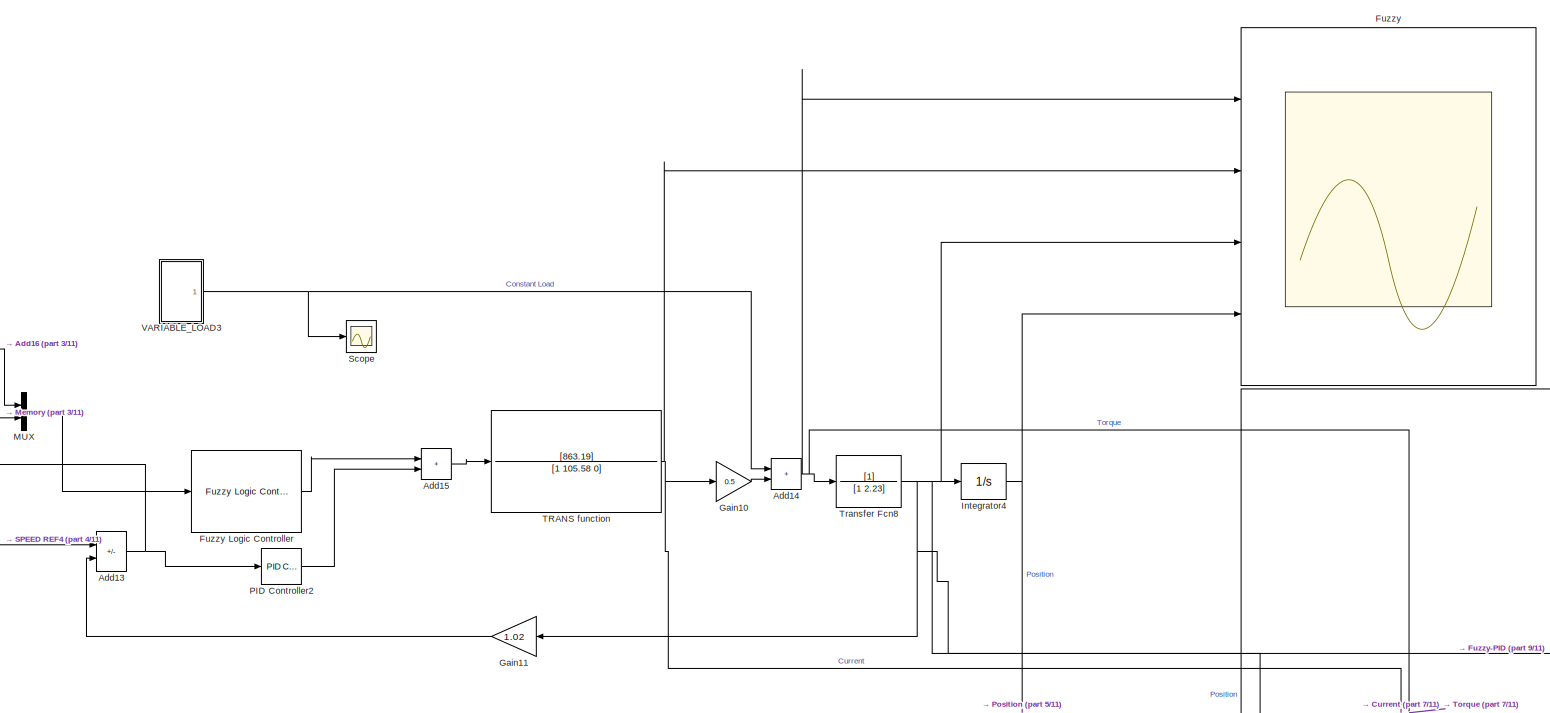
[diagram: root canvas - part 1/11, top center region]
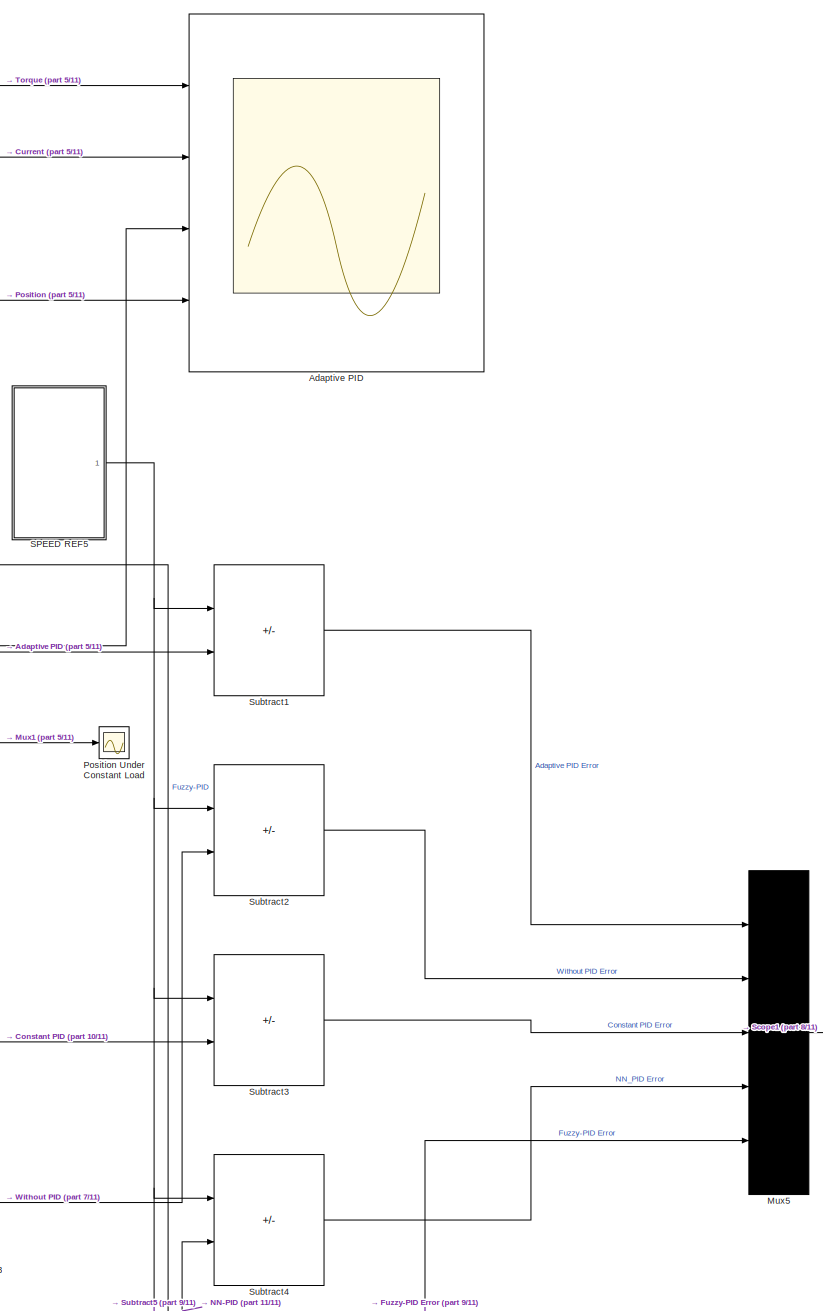
[diagram: root canvas - part 2/11, top right region]
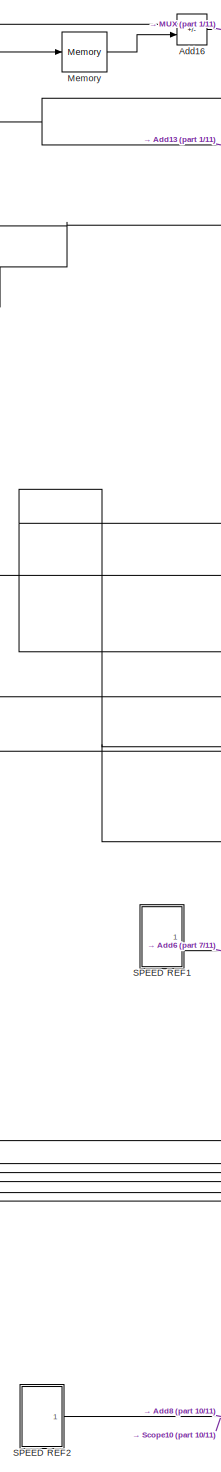
[diagram: root canvas - part 3/11, middle left region]
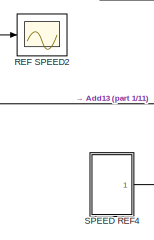
[diagram: root canvas - part 4/11, top left region]
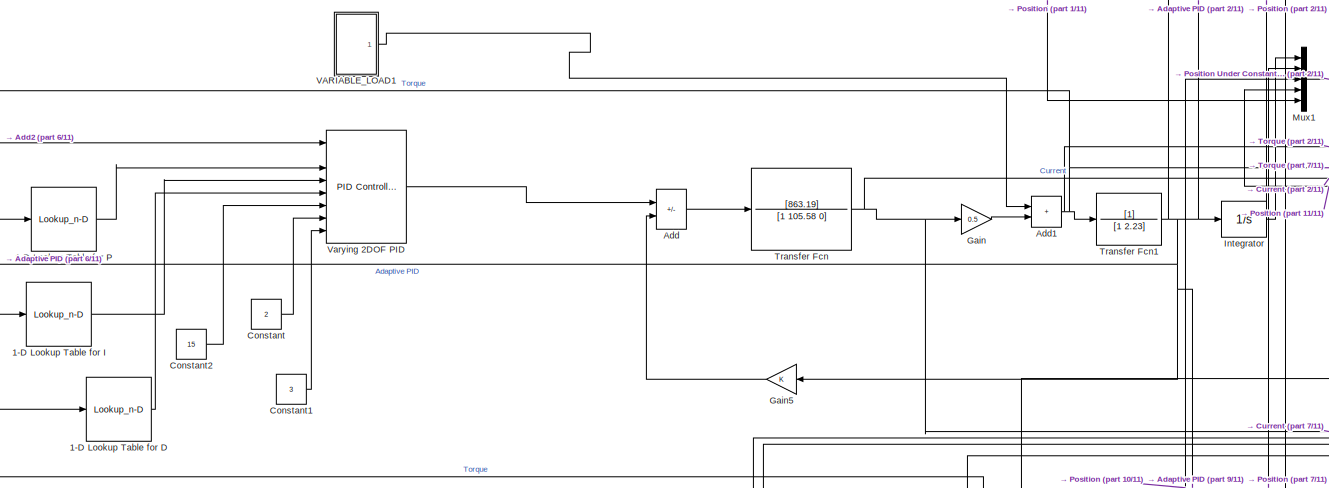
[diagram: root canvas - part 5/11, central region]
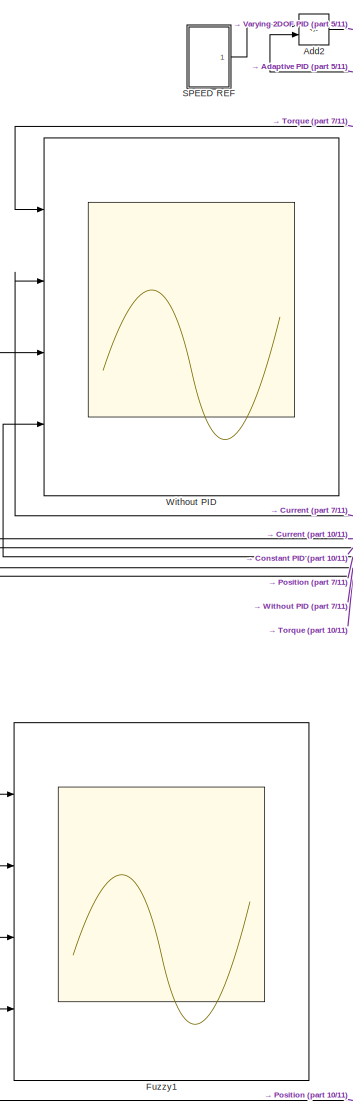
[diagram: root canvas - part 6/11, middle left region]
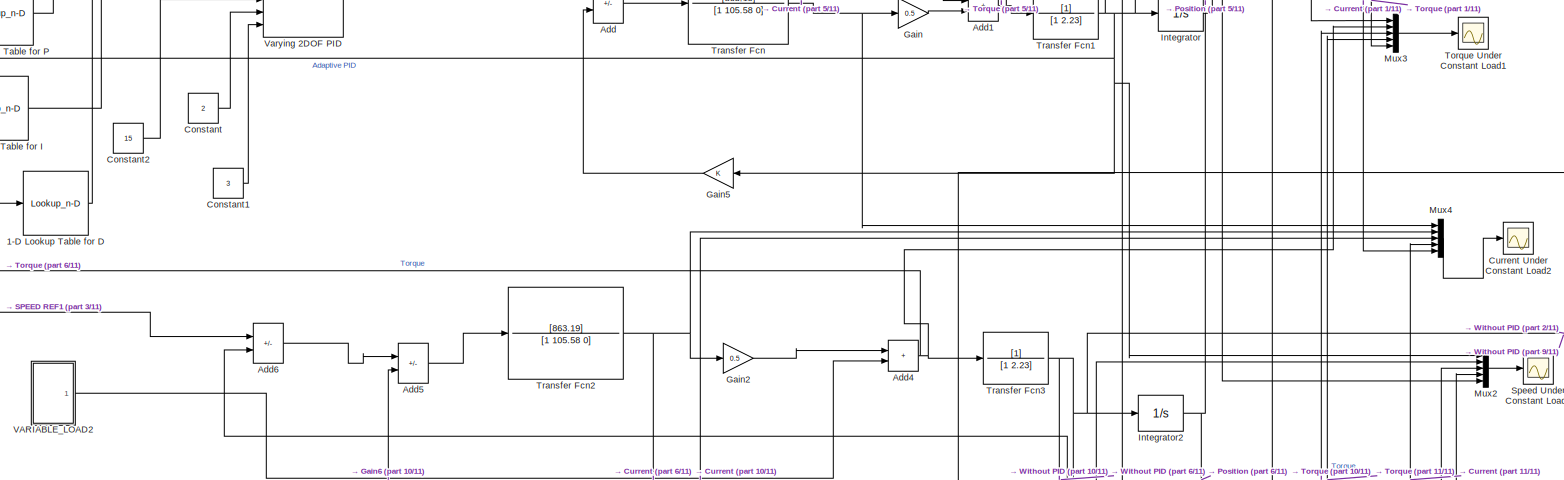
[diagram: root canvas - part 7/11, central region]
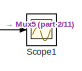
[diagram: root canvas - part 8/11, middle right region]
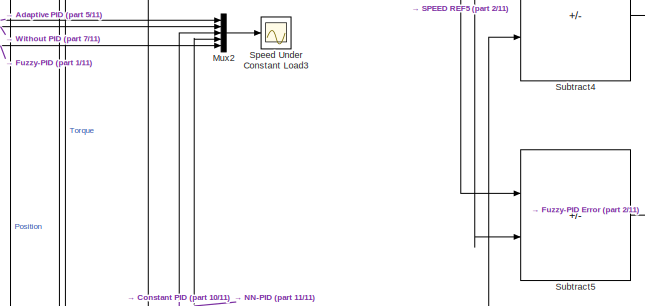
[diagram: root canvas - part 9/11, middle right region]
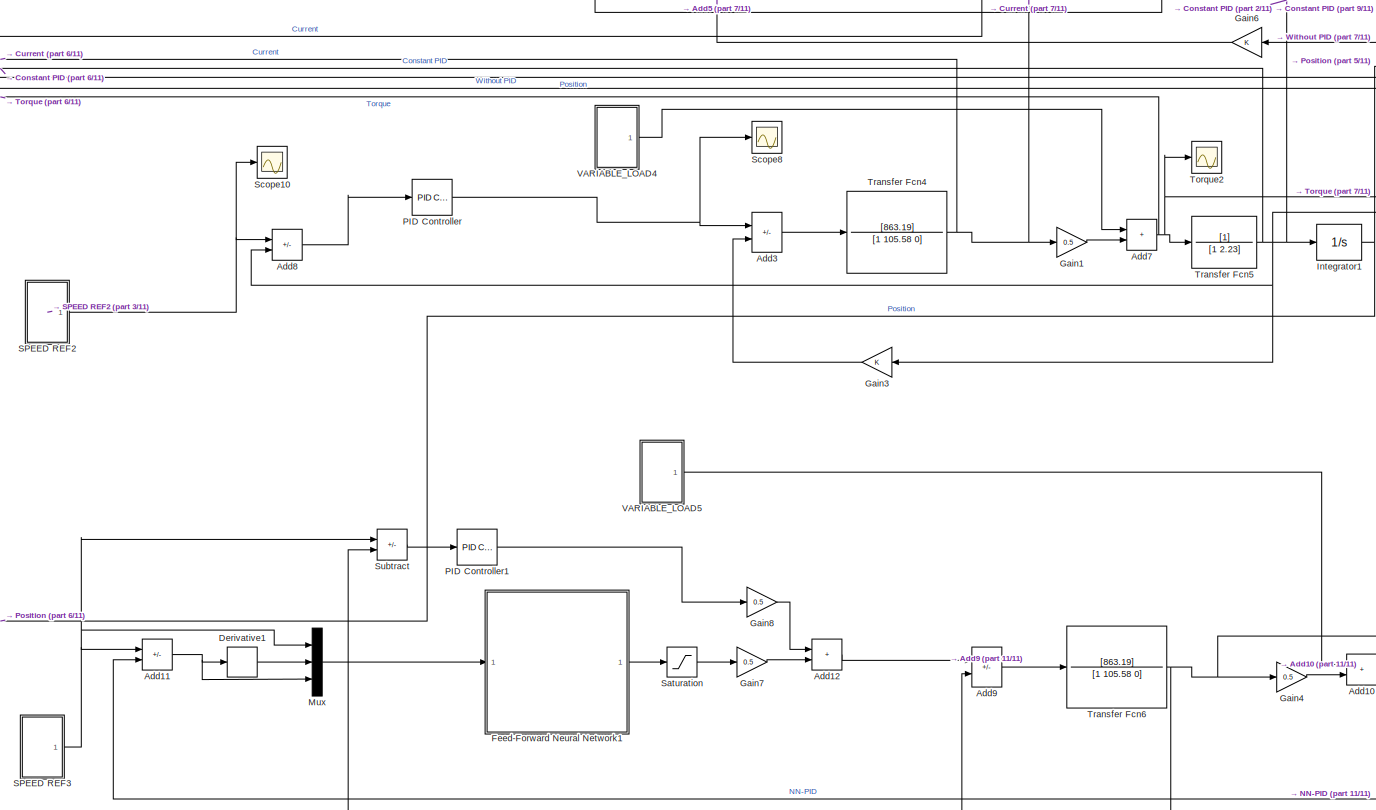
[diagram: root canvas - part 10/11, bottom left region]
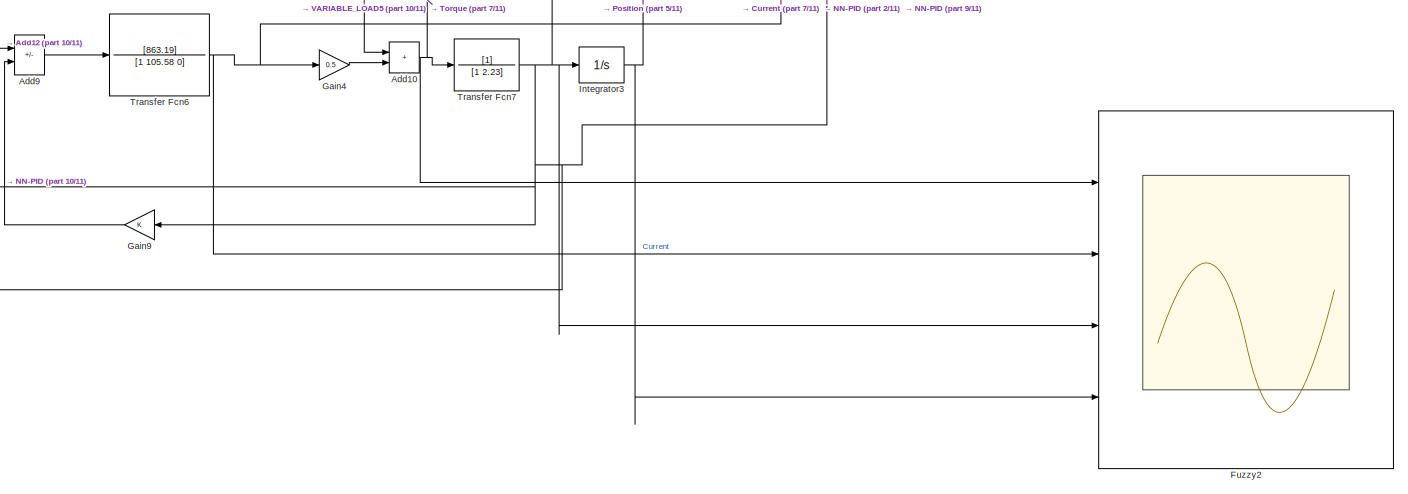
[diagram: root canvas - part 11/11, bottom center region]
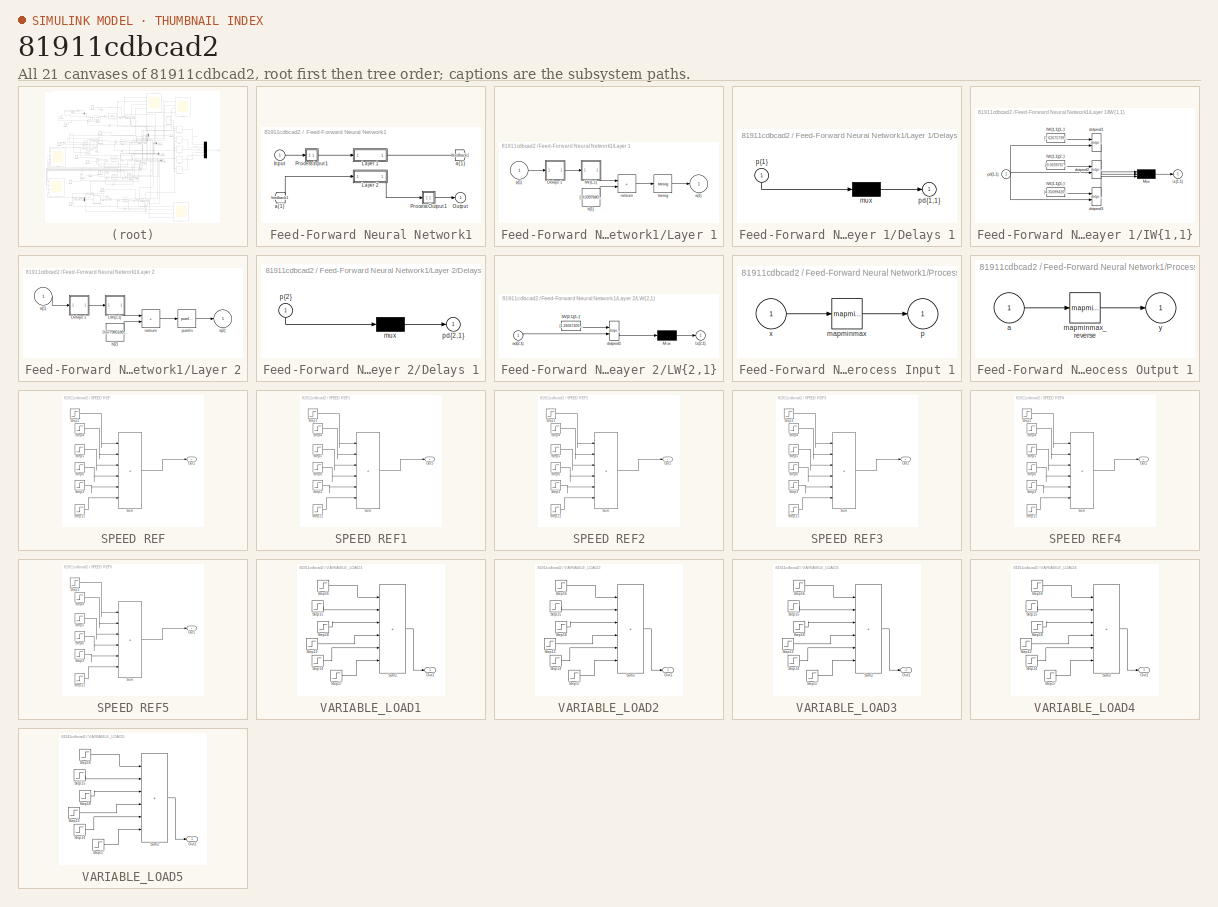
[diagram: thumbnail index - all 21 canvases of the model, root first then tree order]
MODEL slx_81911cdbcad2
KIND model
CONFIG AbsTol = auto
CONFIG EnableMultiTasking = off
CONFIG FixedStep = 0.001
CONFIG MaxStep = auto
CONFIG MinStep = auto
CONFIG RelTol = 1e-3
CONFIG SampleTimeConstraint = Unconstrained
CONFIG SolverName = FixedStepAuto
CONFIG StartTime = 0.0
CONFIG StopTime = 25
BLOCK [Lookup_n-D] 1-D Lookup Table for D
  BreakpointsForDimension1 = [-5, -4.5, -4, -3.5, -3, -2.5, -2, -1.5, -1, -0.5, 0, 0.5, 1, 1.5, 2, 2.5, 3, 3.5, 4, 4.5, 5, 5.5, 6, 6.5, 7, 7.5, 8, 8.5, 9, 9.5, 10]
  InputPortMap = u0
  InternalRulePriority = Speed
  InterpMethod = Linear Lagrange
  NumberOfTableDimensions = 1
  Ports = [1, 1]
  RndMeth = Simplest
  Table = [0.1, 0.1, 0.1, 0.1, 0.1, 0.1, 0.1, 0.1, 0.1, 0.1, 0.1, 0.1, 0.1, 0.1, 0.1, 0.1, 0.1, 0.1, 0.1, 0.1, 0.1, 0.1, 0.1, 0.1, 0.1, 0.1, 0.1, 0.1, 0.1, 0.1, 0.1]
BLOCK [Lookup_n-D] 1-D Lookup Table for I
  BreakpointsForDimension1 = [-5, -4.5, -4, -3.5, -3, -2.5, -2, -1.5, -1, -0.5, 0, 0.5, 1, 1.5, 2, 2.5, 3, 3.5, 4, 4.5, 5, 5.5, 6, 6.5, 7, 7.5, 8, 8.5, 9, 9.5, 10]
  InputPortMap = u0
  InternalRulePriority = Speed
  NumberOfTableDimensions = 1
  Ports = [1, 1]
  RndMeth = Simplest
  Table = [2.0, 2.0, 2.0, 2.0, 2.0, 0.1, 0.1, 0.1, 2.0, 0.5, 0.5, 0.5, 0.5, 0.5, 0.5, 2.5, 2.5, 2.5, 2.0, 2.0, 2.0, 2.0, 0.5, 0.5, 0.5, 2.0, 2.0, 2.0, 2.0, 2.0, 2.0]
BLOCK [Lookup_n-D] 1-D Lookup Table for P
  BreakpointsForDimension1 = [-5, -4.5, -4, -3.5, -3, -2.5, -2, -1.5, -1, -0.5, 0, 0.5, 1, 1.5, 2, 2.5, 3, 3.5, 4, 4.5, 5, 5.5, 6, 6.5, 7, 7.5, 8, 8.5, 9, 9.5, 10]
  InputPortMap = u0
  InternalRulePriority = Speed
  InterpMethod = Linear Lagrange
  NumberOfTableDimensions = 1
  Ports = [1, 1]
  RndMeth = Simplest
  Table = [2.0, 2.0, 0.5, 0.05, 0.05, 0.5, 0.1, 1, 1.5, 1.5, 1.5, 1.5, 2.0, 2.0, 2.5, .05, .5, .5, 2.0, 2.0, 2.0, 2.0, 0.5, 0.5, 0.5, 2.0, 2.0, 2.0, 2.0, 2.0, 2.0]
BLOCK [Scope] Adaptive PID
  Floating = off
  NumInputPorts = 4
  Ports = [4]
  ScopeSpecificationString = Simulink.scopes.TimeScopeBlockCfg('CurrentConfiguration', extmgr.ConfigurationSet(extmgr.Configuration('Core','General UI',true,'FigureColor',[1 1 1]),extmgr.Configuration('Core','Source UI',true),extmgr.Configuration('Sources','WiredSimulink',true,'DataLoggingVariableName','ScopeData4'),extmgr.Configuration('Visuals','Time Domain',true,'SerializedDisplays',{struct('MinYLimReal','-3.09454','MaxYLi...<+4030ch>
BLOCK [Sum] Add
  IconShape = rectangular
  Inputs = +-
  Ports = [2, 1]
BLOCK [Sum] Add1
  IconShape = rectangular
  Ports = [2, 1]
BLOCK [Sum] Add10
  IconShape = rectangular
  Ports = [2, 1]
BLOCK [Sum] Add11
  IconShape = rectangular
  Inputs = +-
  Ports = [2, 1]
BLOCK [Sum] Add12
  IconShape = rectangular
  Ports = [2, 1]
BLOCK [Sum] Add13
  IconShape = rectangular
  Inputs = +-
  Ports = [2, 1]
BLOCK [Sum] Add14
  IconShape = rectangular
  Ports = [2, 1]
BLOCK [Sum] Add15
  IconShape = rectangular
  Ports = [2, 1]
BLOCK [Sum] Add16
  IconShape = rectangular
  Inputs = +-
  Ports = [2, 1]
BLOCK [Sum] Add2
  IconShape = rectangular
  Inputs = +-
  Ports = [2, 1]
BLOCK [Sum] Add3
  IconShape = rectangular
  Inputs = +-
  Ports = [2, 1]
BLOCK [Sum] Add4
  IconShape = rectangular
  Ports = [2, 1]
BLOCK [Sum] Add5
  IconShape = rectangular
  Inputs = +-
  Ports = [2, 1]
BLOCK [Sum] Add6
  IconShape = rectangular
  Inputs = +-
  Ports = [2, 1]
BLOCK [Sum] Add7
  IconShape = rectangular
  Ports = [2, 1]
BLOCK [Sum] Add8
  IconShape = rectangular
  Inputs = +-
  Ports = [2, 1]
BLOCK [Sum] Add9
  IconShape = rectangular
  Inputs = +-
  Ports = [2, 1]
BLOCK [Constant] Constant
  Value = 2
BLOCK [Constant] Constant1
  Value = 3
BLOCK [Constant] Constant2
  Value = 15
BLOCK [Scope] Current Under Constant Load2
  Floating = off
  NameLocation = left
  NumInputPorts = 1
  Ports = [1]
  ScopeSpecificationString = Simulink.scopes.TimeScopeBlockCfg('CurrentConfiguration', extmgr.ConfigurationSet(extmgr.Configuration('Core','General UI',true,'FigureColor',[1 1 1]),extmgr.Configuration('Core','Source UI',true),extmgr.Configuration('Sources','WiredSimulink',true,'DataLoggingVariableName','ScopeData8'),extmgr.Configuration('Visuals','Time Domain',true,'SerializedDisplays',{struct('MinYLimReal','-19.34851','MaxYL...<+2056ch>
BLOCK [Derivative] Derivative1
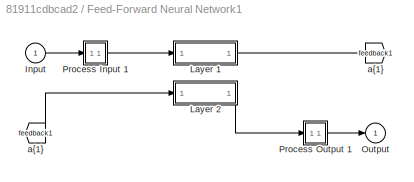
BLOCK [SubSystem] Feed-Forward Neural Network1
  Ports = [1, 1]
  RequestExecContextInheritance = off
BLOCK [From] Feed-Forward Neural Network1/ a{1} 
  GotoTag = feedback1
BLOCK [Inport] Feed-Forward Neural Network1/Input
  PortDimensions = 3
  SampleTime = 0.01
BLOCK [SubSystem] Feed-Forward Neural Network1/Layer 1
  Ports = [1, 1]
  RequestExecContextInheritance = off
BLOCK [SubSystem] Feed-Forward Neural Network1/Layer 1/Delays 1
  Ports = [1, 1]
  RequestExecContextInheritance = off
BLOCK [Mux] Feed-Forward Neural Network1/Layer 1/Delays 1/mux
  Inputs = 1
  Ports = [1, 1]
BLOCK [Outport] Feed-Forward Neural Network1/Layer 1/Delays 1/pd{1,1}
BLOCK [Inport] Feed-Forward Neural Network1/Layer 1/Delays 1/p{1}
  NameLocation = left
  PortDimensions = 3
  SampleTime = 0.01
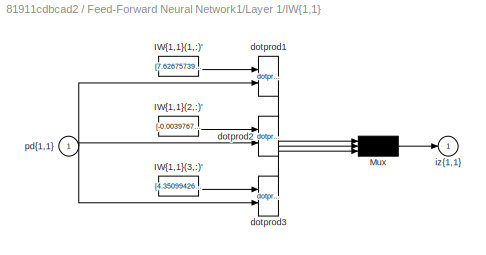
BLOCK [SubSystem] Feed-Forward Neural Network1/Layer 1/IW{1,1}
  Ports = [1, 1]
  RequestExecContextInheritance = off
BLOCK [Constant] Feed-Forward Neural Network1/Layer 1/IW{1,1}/IW{1,1}(1,:)'
  Value = [7.62675739469773628087523320573382079601287841796875;-0.5446236789066098982203811829094775021076202392578125;0.204331324162682348433150991695583797991275787353515625]
BLOCK [Constant] Feed-Forward Neural Network1/Layer 1/IW{1,1}/IW{1,1}(2,:)'
  Value = [-0.003976781406184483162735698869028055923990905284881591796875;4.7496947825762703132568276487290859222412109375;0.003744712794989319033789332280548478593118488788604736328125]
BLOCK [Constant] Feed-Forward Neural Network1/Layer 1/IW{1,1}/IW{1,1}(3,:)'
  Value = [4.35099426290350610457835500710643827915191650390625;-0.376883520126434390373759697467903606593608856201171875;-0.033725710150871814063666676020147860981523990631103515625]
BLOCK [Mux] Feed-Forward Neural Network1/Layer 1/IW{1,1}/Mux
  Inputs = 3
  Ports = [3, 1]
BLOCK [Reference] Feed-Forward Neural Network1/Layer 1/IW{1,1}/dotprod1  REF=neural/Weight Functions/dotprod
  Ports = [2, 1]
  SourceBlock = neural/Weight Functions/dotprod
  SourceProductBaseCode = NN
  SourceType = DOTPROD
BLOCK [Reference] Feed-Forward Neural Network1/Layer 1/IW{1,1}/dotprod2  REF=neural/Weight Functions/dotprod
  Ports = [2, 1]
  SourceBlock = neural/Weight Functions/dotprod
  SourceProductBaseCode = NN
  SourceType = DOTPROD
BLOCK [Reference] Feed-Forward Neural Network1/Layer 1/IW{1,1}/dotprod3  REF=neural/Weight Functions/dotprod
  Ports = [2, 1]
  SourceBlock = neural/Weight Functions/dotprod
  SourceProductBaseCode = NN
  SourceType = DOTPROD
BLOCK [Outport] Feed-Forward Neural Network1/Layer 1/IW{1,1}/iz{1,1}
BLOCK [Inport] Feed-Forward Neural Network1/Layer 1/IW{1,1}/pd{1,1}
  PortDimensions = 3
  SampleTime = 0.01
BLOCK [Outport] Feed-Forward Neural Network1/Layer 1/a{1}
  InitialOutput = [0;0;0]
BLOCK [Constant] Feed-Forward Neural Network1/Layer 1/b{1}
  Value = [-9.039784028091073508903718902729451656341552734375;0.007088234032908090863356331823297296068631112575531005859375;5.52122914229548999998087310814298689365386962890625]
BLOCK [Sum] Feed-Forward Neural Network1/Layer 1/netsum
  IconShape = rectangular
  InputSameDT = on
  Inputs = 2
  OutDataTypeStr = Inherit: Same as first input
  Ports = [2, 1]
  SaturateOnIntegerOverflow = on
BLOCK [Inport] Feed-Forward Neural Network1/Layer 1/p{1}
  PortDimensions = 3
  SampleTime = 0.01
BLOCK [Reference] Feed-Forward Neural Network1/Layer 1/tansig  REF=neural/Transfer Functions/tansig
  Ports = [1, 1]
  SourceBlock = neural/Transfer Functions/tansig
  SourceProductBaseCode = NN
  SourceType = TANSIG
BLOCK [SubSystem] Feed-Forward Neural Network1/Layer 2
  Ports = [1, 1]
  RequestExecContextInheritance = off
BLOCK [SubSystem] Feed-Forward Neural Network1/Layer 2/Delays 1
  Ports = [1, 1]
  RequestExecContextInheritance = off
BLOCK [Mux] Feed-Forward Neural Network1/Layer 2/Delays 1/mux
  Inputs = 1
  Ports = [1, 1]
BLOCK [Outport] Feed-Forward Neural Network1/Layer 2/Delays 1/pd{2,1}
BLOCK [Inport] Feed-Forward Neural Network1/Layer 2/Delays 1/p{2}
  NameLocation = left
  PortDimensions = 3
  SampleTime = 0.01
BLOCK [SubSystem] Feed-Forward Neural Network1/Layer 2/LW{2,1}
  Ports = [1, 1]
  RequestExecContextInheritance = off
BLOCK [Constant] Feed-Forward Neural Network1/Layer 2/LW{2,1}/IW{2,1}(1,:)'
  Value = [1.2606740079756655337206439071451313793659210205078125;0.9550747593310602301386325052590109407901763916015625;0.57590711305542263698242777536506764590740203857421875]
BLOCK [Mux] Feed-Forward Neural Network1/Layer 2/LW{2,1}/Mux
  Inputs = 1
  Ports = [1, 1]
BLOCK [Inport] Feed-Forward Neural Network1/Layer 2/LW{2,1}/ad{2,1}
  PortDimensions = 3
  SampleTime = 0.01
BLOCK [Reference] Feed-Forward Neural Network1/Layer 2/LW{2,1}/dotprod1  REF=neural/Weight Functions/dotprod
  Ports = [2, 1]
  SourceBlock = neural/Weight Functions/dotprod
  SourceProductBaseCode = NN
  SourceType = DOTPROD
BLOCK [Outport] Feed-Forward Neural Network1/Layer 2/LW{2,1}/lz{2,1}
BLOCK [Inport] Feed-Forward Neural Network1/Layer 2/a{1} 
  PortDimensions = 3
  SampleTime = 0.01
BLOCK [Outport] Feed-Forward Neural Network1/Layer 2/a{2}
  InitialOutput = 0
BLOCK [Constant] Feed-Forward Neural Network1/Layer 2/b{2}
  Value = 0.677985189695716083946308572194539010524749755859375
BLOCK [Sum] Feed-Forward Neural Network1/Layer 2/netsum
  IconShape = rectangular
  InputSameDT = on
  Inputs = 2
  OutDataTypeStr = Inherit: Same as first input
  Ports = [2, 1]
  SaturateOnIntegerOverflow = on
BLOCK [Reference] Feed-Forward Neural Network1/Layer 2/purelin  REF=neural/Transfer Functions/purelin
  Ports = [1, 1]
  SourceBlock = neural/Transfer Functions/purelin
  SourceProductBaseCode = NN
  SourceType = PURELIN
BLOCK [Outport] Feed-Forward Neural Network1/Output
  InitialOutput = 0
BLOCK [SubSystem] Feed-Forward Neural Network1/Process Input 1
  Ports = [1, 1]
  RequestExecContextInheritance = off
BLOCK [Reference] Feed-Forward Neural Network1/Process Input 1/mapminmax  REF=neural/Processing Functions/mapminmax
  Ports = [1, 1]
  SourceBlock = neural/Processing Functions/mapminmax
  SourceProductBaseCode = NN
  SourceType = MAPMINMAX Preprocess
BLOCK [Outport] Feed-Forward Neural Network1/Process Input 1/p
  PortDimensions = 3
  SampleTime = 0.01
BLOCK [Inport] Feed-Forward Neural Network1/Process Input 1/x
  PortDimensions = 3
  SampleTime = 0.01
BLOCK [SubSystem] Feed-Forward Neural Network1/Process Output 1
  Ports = [1, 1]
  RequestExecContextInheritance = off
BLOCK [Inport] Feed-Forward Neural Network1/Process Output 1/a
  PortDimensions = 1
  SampleTime = 0.01
BLOCK [Reference] Feed-Forward Neural Network1/Process Output 1/mapminmax_reverse  REF=neural/Processing Functions/mapminmax_reverse
  Ports = [1, 1]
  SourceBlock = neural/Processing Functions/mapminmax_reverse
  SourceProductBaseCode = NN
  SourceType = MAPMINMAX Reverse Process
BLOCK [Outport] Feed-Forward Neural Network1/Process Output 1/y
  PortDimensions = 1
  SampleTime = 0.01
BLOCK [Goto] Feed-Forward Neural Network1/a{1}
  GotoTag = feedback1
BLOCK [Scope] Fuzzy
  Floating = off
  NumInputPorts = 4
  Ports = [4]
  ScopeSpecificationString = Simulink.scopes.TimeScopeBlockCfg('CurrentConfiguration', extmgr.ConfigurationSet(extmgr.Configuration('Core','General UI',true,'FigureColor',[1 1 1]),extmgr.Configuration('Core','Source UI',true),extmgr.Configuration('Sources','WiredSimulink',true,'DataLoggingVariableName','ScopeData3'),extmgr.Configuration('Visuals','Time Domain',true,'SerializedDisplays',{struct('MinYLimReal','-4.54257','MaxYLi...<+4040ch>
BLOCK [Reference] Fuzzy Logic Controller  REF=fuzblock/Fuzzy Logic   (lib defined in mdl_858b3b3e7478)
Controller
  Ports = [1, 1]
  SourceBlock = fuzblock/Fuzzy Logic \nController
  SourceProductBaseCode = FL
  SourceType = Fuzzy Inference System
BLOCK [Scope] Fuzzy1
  Floating = off
  NumInputPorts = 4
  Ports = [4]
  ScopeSpecificationString = Simulink.scopes.TimeScopeBlockCfg('CurrentConfiguration', extmgr.ConfigurationSet(extmgr.Configuration('Core','General UI',true,'FigureColor',[1 1 1]),extmgr.Configuration('Core','Source UI',true),extmgr.Configuration('Sources','WiredSimulink',true,'DataLoggingVariableName','ScopeData6'),extmgr.Configuration('Visuals','Time Domain',true,'SerializedDisplays',{struct('MinYLimReal','-4.79925','MaxYLi...<+4043ch>
BLOCK [Scope] Fuzzy2
  Floating = off
  NumInputPorts = 4
  Ports = [4]
  ScopeSpecificationString = Simulink.scopes.TimeScopeBlockCfg('CurrentConfiguration', extmgr.ConfigurationSet(extmgr.Configuration('Core','General UI',true,'FigureColor',[1 1 1]),extmgr.Configuration('Core','Source UI',true),extmgr.Configuration('Sources','WiredSimulink',true,'DataLoggingVariableName','ScopeData7'),extmgr.Configuration('Visuals','Time Domain',true,'SerializedDisplays',{struct('MinYLimReal','-3.79084','MaxYLi...<+4037ch>
BLOCK [Gain] Gain
  Gain = 0.5
BLOCK [Gain] Gain1
  Gain = 0.5
BLOCK [Gain] Gain10
  Gain = 0.5
BLOCK [Gain] Gain11
  Gain = 1.02
  NameLocation = top
BLOCK [Gain] Gain2
  Gain = 0.5
BLOCK [Gain] Gain3
  NameLocation = top
BLOCK [Gain] Gain4
  Gain = 0.5
BLOCK [Gain] Gain5
  NameLocation = top
BLOCK [Gain] Gain6
  NameLocation = top
BLOCK [Gain] Gain7
  Gain = 0.5
BLOCK [Gain] Gain8
  Gain = 0.5
BLOCK [Gain] Gain9
  NameLocation = top
BLOCK [Integrator] Integrator
  Ports = [1, 1]
BLOCK [Integrator] Integrator1
  Ports = [1, 1]
BLOCK [Integrator] Integrator2
  Ports = [1, 1]
BLOCK [Integrator] Integrator3
  Ports = [1, 1]
BLOCK [Integrator] Integrator4
  Ports = [1, 1]
BLOCK [Mux] MUX
  DisplayOption = bar
  Inputs = 2
  Ports = [2, 1]
BLOCK [Memory] Memory
BLOCK [Mux] Mux
  DisplayOption = bar
  Inputs = 3
  Ports = [3, 1]
BLOCK [Mux] Mux1
  DisplayOption = bar
  Inputs = 5
  Ports = [5, 1]
BLOCK [Mux] Mux2
  DisplayOption = bar
  Inputs = 5
  Ports = [5, 1]
BLOCK [Mux] Mux3
  DisplayOption = bar
  Inputs = 5
  Ports = [5, 1]
BLOCK [Mux] Mux4
  DisplayOption = bar
  Inputs = 5
  Ports = [5, 1]
BLOCK [Mux] Mux5
  DisplayOption = bar
  Inputs = 5
  Ports = [5, 1]
BLOCK [Reference] PID Controller  REF=pid_lib/PID Controller
  Ports = [1, 1]
  SourceBlock = pid_lib/PID Controller
  SourceProductBaseCode = SL
  SourceType = PID 1dof
BLOCK [Reference] PID Controller1  REF=pid_lib/PID Controller
  Ports = [1, 1]
  SourceBlock = pid_lib/PID Controller
  SourceProductBaseCode = SL
  SourceType = PID 1dof
BLOCK [Reference] PID Controller2  REF=pid_lib/PID Controller
  Ports = [1, 1]
  SourceBlock = pid_lib/PID Controller
  SourceProductBaseCode = SL
  SourceType = PID 1dof
BLOCK [Scope] Position Under Constant Load
  Floating = off
  NumInputPorts = 1
  Ports = [1]
  ScopeSpecificationString = Simulink.scopes.TimeScopeBlockCfg('CurrentConfiguration', extmgr.ConfigurationSet(extmgr.Configuration('Core','General UI',true,'FigureColor',[1 1 1]),extmgr.Configuration('Core','Source UI',true),extmgr.Configuration('Sources','WiredSimulink',true,'DataLoggingVariableName','ScopeData2'),extmgr.Configuration('Visuals','Time Domain',true,'SerializedDisplays',{struct('MinYLimReal','-0.90846','MaxYLi...<+2054ch>
BLOCK [Scope] REF SPEED2
  Floating = off
  NumInputPorts = 1
  Ports = [1]
  ScopeSpecificationString = Simulink.scopes.TimeScopeBlockCfg('CurrentConfiguration', extmgr.ConfigurationSet(extmgr.Configuration('Core','General UI',true,'FigureColor',[0 0 0]),extmgr.Configuration('Core','Source UI',true),extmgr.Configuration('Sources','WiredSimulink',true,'DataLoggingVariableName','ScopeData3'),extmgr.Configuration('Visuals','Time Domain',true,'SerializedDisplays',{struct('MinYLimReal','-1.25','MaxYLimRe...<+1600ch>
BLOCK [SubSystem] SPEED REF
  Ports = [0, 1]
  RequestExecContextInheritance = off
BLOCK [Outport] SPEED REF/Out1
BLOCK [Step] SPEED REF/Step1
  After = 0
  Before = 2
  SampleTime = 0
  Time = 0
BLOCK [Step] SPEED REF/Step11
  SampleTime = 0
  Time = 0
BLOCK [Step] SPEED REF/Step3
  SampleTime = 0
  Time = 20
BLOCK [Step] SPEED REF/Step4
  After = 0
  Before = 1
  SampleTime = 0
  Time = 5
BLOCK [Step] SPEED REF/Step5
  After = -1
  Before = 0
  SampleTime = 0
  Time = 10
BLOCK [Step] SPEED REF/Step6
  After = 0
  Before = -1
  SampleTime = 0
  Time = 15
BLOCK [Sum] SPEED REF/Sum
  IconShape = rectangular
  Inputs = |++++++
  Ports = [6, 1]
BLOCK [SubSystem] SPEED REF1
  Ports = [0, 1]
  RequestExecContextInheritance = off
BLOCK [Outport] SPEED REF1/Out1
BLOCK [Step] SPEED REF1/Step1
  After = 0
  Before = 2
  SampleTime = 0
  Time = 0
BLOCK [Step] SPEED REF1/Step11
  SampleTime = 0
  Time = 0
BLOCK [Step] SPEED REF1/Step3
  SampleTime = 0
  Time = 20
BLOCK [Step] SPEED REF1/Step4
  After = 0
  Before = 1
  SampleTime = 0
  Time = 5
BLOCK [Step] SPEED REF1/Step5
  After = -1
  Before = 0
  SampleTime = 0
  Time = 10
BLOCK [Step] SPEED REF1/Step6
  After = 0
  Before = -1
  SampleTime = 0
  Time = 15
BLOCK [Sum] SPEED REF1/Sum
  IconShape = rectangular
  Inputs = |++++++
  Ports = [6, 1]
BLOCK [SubSystem] SPEED REF2
  Ports = [0, 1]
  RequestExecContextInheritance = off
BLOCK [Outport] SPEED REF2/Out1
BLOCK [Step] SPEED REF2/Step1
  After = 0
  Before = 2
  SampleTime = 0
  Time = 0
BLOCK [Step] SPEED REF2/Step11
  SampleTime = 0
  Time = 0
BLOCK [Step] SPEED REF2/Step3
  SampleTime = 0
  Time = 20
BLOCK [Step] SPEED REF2/Step4
  After = 0
  Before = 1
  SampleTime = 0
  Time = 5
BLOCK [Step] SPEED REF2/Step5
  After = -1
  Before = 0
  SampleTime = 0
  Time = 10
BLOCK [Step] SPEED REF2/Step6
  After = 0
  Before = -1
  SampleTime = 0
  Time = 15
BLOCK [Sum] SPEED REF2/Sum
  IconShape = rectangular
  Inputs = |++++++
  Ports = [6, 1]
BLOCK [SubSystem] SPEED REF3
  Ports = [0, 1]
  RequestExecContextInheritance = off
BLOCK [Outport] SPEED REF3/Out1
BLOCK [Step] SPEED REF3/Step1
  After = 0
  Before = 2
  SampleTime = 0
  Time = 0
BLOCK [Step] SPEED REF3/Step11
  SampleTime = 0
  Time = 0
BLOCK [Step] SPEED REF3/Step3
  SampleTime = 0
  Time = 20
BLOCK [Step] SPEED REF3/Step4
  After = 0
  Before = 1
  SampleTime = 0
  Time = 5
BLOCK [Step] SPEED REF3/Step5
  After = -1
  Before = 0
  SampleTime = 0
  Time = 10
BLOCK [Step] SPEED REF3/Step6
  After = 0
  Before = -1
  SampleTime = 0
  Time = 15
BLOCK [Sum] SPEED REF3/Sum
  IconShape = rectangular
  Inputs = |++++++
  Ports = [6, 1]
BLOCK [SubSystem] SPEED REF4
  Ports = [0, 1]
  RequestExecContextInheritance = off
BLOCK [Outport] SPEED REF4/Out1
BLOCK [Step] SPEED REF4/Step1
  After = 0
  Before = 2
  SampleTime = 0
  Time = 0
BLOCK [Step] SPEED REF4/Step11
  SampleTime = 0
  Time = 0
BLOCK [Step] SPEED REF4/Step3
  SampleTime = 0
  Time = 20
BLOCK [Step] SPEED REF4/Step4
  After = 0
  Before = 1
  SampleTime = 0
  Time = 5
BLOCK [Step] SPEED REF4/Step5
  After = -1
  Before = 0
  SampleTime = 0
  Time = 10
BLOCK [Step] SPEED REF4/Step6
  After = 0
  Before = -1
  SampleTime = 0
  Time = 15
BLOCK [Sum] SPEED REF4/Sum
  IconShape = rectangular
  Inputs = |++++++
  Ports = [6, 1]
BLOCK [SubSystem] SPEED REF5
  Ports = [0, 1]
  RequestExecContextInheritance = off
BLOCK [Outport] SPEED REF5/Out1
BLOCK [Step] SPEED REF5/Step1
  After = 0
  Before = 2
  SampleTime = 0
  Time = 0
BLOCK [Step] SPEED REF5/Step11
  SampleTime = 0
  Time = 0
BLOCK [Step] SPEED REF5/Step3
  SampleTime = 0
  Time = 20
BLOCK [Step] SPEED REF5/Step4
  After = 0
  Before = 1
  SampleTime = 0
  Time = 5
BLOCK [Step] SPEED REF5/Step5
  After = -1
  Before = 0
  SampleTime = 0
  Time = 10
BLOCK [Step] SPEED REF5/Step6
  After = 0
  Before = -1
  SampleTime = 0
  Time = 15
BLOCK [Sum] SPEED REF5/Sum
  IconShape = rectangular
  Inputs = |++++++
  Ports = [6, 1]
BLOCK [Saturate] Saturation
  LowerLimit = -1
  UpperLimit = 1
BLOCK [Scope] Scope
  Floating = off
  NumInputPorts = 1
  Ports = [1]
  ScopeSpecificationString = Simulink.scopes.TimeScopeBlockCfg('CurrentConfiguration', extmgr.ConfigurationSet(extmgr.Configuration('Core','General UI',true,'FigureColor',[1 1 1]),extmgr.Configuration('Core','Source UI',true),extmgr.Configuration('Sources','WiredSimulink',true,'DataLoggingVariableName','ScopeData1'),extmgr.Configuration('Visuals','Time Domain',true,'SerializedDisplays',{struct('MinYLimReal','3.75','MaxYLimRea...<+1480ch>
BLOCK [Scope] Scope1
  Floating = off
  NumInputPorts = 1
  Ports = [1]
  ScopeSpecificationString = Simulink.scopes.TimeScopeBlockCfg('CurrentConfiguration', extmgr.ConfigurationSet(extmgr.Configuration('Core','General UI',true,'FigureColor',[1 1 1]),extmgr.Configuration('Core','Source UI',true),extmgr.Configuration('Sources','WiredSimulink',true,'DataLoggingVariableName','ScopeData10'),extmgr.Configuration('Visuals','Time Domain',true,'SerializedDisplays',{struct('MinYLimReal','-1.29476','MaxYL...<+2016ch>
BLOCK [Scope] Scope10
  Floating = off
  NumInputPorts = 1
  Ports = [1]
  ScopeSpecificationString = Simulink.scopes.TimeScopeBlockCfg('CurrentConfiguration', extmgr.ConfigurationSet(extmgr.Configuration('Core','General UI',true),extmgr.Configuration('Core','Source UI',true),extmgr.Configuration('Sources','WiredSimulink',true,'DataLoggingVariableName','ScopeData4'),extmgr.Configuration('Visuals','Time Domain',true,'SerializedDisplays',{struct('MinYLimReal','-1.25','MaxYLimReal','2.00000','YLabelR...<+1502ch>
BLOCK [Scope] Scope8
  Floating = off
  NumInputPorts = 1
  Ports = [1]
  ScopeSpecificationString = Simulink.scopes.TimeScopeBlockCfg('CurrentConfiguration', extmgr.ConfigurationSet(extmgr.Configuration('Core','General UI',true),extmgr.Configuration('Core','Source UI',true),extmgr.Configuration('Sources','WiredSimulink',true,'DataLoggingVariableName','ScopeData5'),extmgr.Configuration('Visuals','Time Domain',true,'SerializedDisplays',{struct('MinYLimReal','-122045790683140.75','MaxYLimReal','428...<+1488ch>
BLOCK [Scope] Speed Under Constant Load3
  Floating = off
  NumInputPorts = 1
  Ports = [1]
  ScopeSpecificationString = Simulink.scopes.TimeScopeBlockCfg('CurrentConfiguration', extmgr.ConfigurationSet(extmgr.Configuration('Core','General UI',true,'FigureColor',[1 1 1]),extmgr.Configuration('Core','Source UI',true),extmgr.Configuration('Sources','WiredSimulink',true,'DataLoggingVariableName','ScopeData9'),extmgr.Configuration('Visuals','Time Domain',true,'SerializedDisplays',{struct('MinYLimReal','-1.48673','MaxYLi...<+1991ch>
BLOCK [Sum] Subtract
  IconShape = rectangular
  Inputs = +-
  Ports = [2, 1]
BLOCK [Sum] Subtract1
  IconShape = rectangular
  Inputs = +-
  Ports = [2, 1]
BLOCK [Sum] Subtract2
  IconShape = rectangular
  Inputs = +-
  Ports = [2, 1]
BLOCK [Sum] Subtract3
  IconShape = rectangular
  Inputs = +-
  Ports = [2, 1]
BLOCK [Sum] Subtract4
  IconShape = rectangular
  Inputs = +-
  Ports = [2, 1]
BLOCK [Sum] Subtract5
  IconShape = rectangular
  Inputs = +-
  Ports = [2, 1]
BLOCK [TransferFcn] TRANS function
  Denominator = [1 105.58 0]
  Numerator = [863.19]
BLOCK [Scope] Torque Under Constant Load1
  Floating = off
  NumInputPorts = 1
  Ports = [1]
  ScopeSpecificationString = Simulink.scopes.TimeScopeBlockCfg('CurrentConfiguration', extmgr.ConfigurationSet(extmgr.Configuration('Core','General UI',true,'FigureColor',[1 1 1]),extmgr.Configuration('Core','Source UI',true),extmgr.Configuration('Sources','WiredSimulink',true,'DataLoggingVariableName','ScopeData2'),extmgr.Configuration('Visuals','Time Domain',true,'SerializedDisplays',{struct('MinYLimReal','-4.79925','MaxYLi...<+2050ch>
BLOCK [Scope] Torque2
  Floating = off
  NumInputPorts = 1
  Ports = [1]
  ScopeSpecificationString = Simulink.scopes.TimeScopeBlockCfg('CurrentConfiguration', extmgr.ConfigurationSet(extmgr.Configuration('Core','General UI',true),extmgr.Configuration('Core','Source UI',true),extmgr.Configuration('Sources','WiredSimulink',true),extmgr.Configuration('Visuals','Time Domain',true,'SerializedDisplays',{struct('MinYLimReal','-21.32063','MaxYLimReal','29.70331','YLabelReal','','MinYLimMag','0.00000','Ma...<+1330ch>
BLOCK [TransferFcn] Transfer Fcn
  Denominator = [1 105.58 0]
  Numerator = [863.19]
BLOCK [TransferFcn] Transfer Fcn1
  Denominator = [1 2.23]
BLOCK [TransferFcn] Transfer Fcn2
  Denominator = [1 105.58 0]
  Numerator = [863.19]
BLOCK [TransferFcn] Transfer Fcn3
  Denominator = [1 2.23]
BLOCK [TransferFcn] Transfer Fcn4
  Denominator = [1 105.58 0]
  Numerator = [863.19]
BLOCK [TransferFcn] Transfer Fcn5
  Denominator = [1 2.23]
BLOCK [TransferFcn] Transfer Fcn6
  Denominator = [1 105.58 0]
  Numerator = [863.19]
BLOCK [TransferFcn] Transfer Fcn7
  Denominator = [1 2.23]
BLOCK [TransferFcn] Transfer Fcn8
  Denominator = [1 2.23]
BLOCK [SubSystem] VARIABLE_LOAD1
  Ports = [0, 1]
  RequestExecContextInheritance = off
BLOCK [Outport] VARIABLE_LOAD1/Out1
BLOCK [Step] VARIABLE_LOAD1/Step13
  After = 0
  Before = 0
  SampleTime = 0
  Time = 10
BLOCK [Step] VARIABLE_LOAD1/Step14
  After = 0
  SampleTime = 0
  Time = 15
BLOCK [Step] VARIABLE_LOAD1/Step15
  After = 0
  Before = 1
  SampleTime = 0
  Time = 0
BLOCK [Step] VARIABLE_LOAD1/Step16
  After = 3
  SampleTime = 0
  Time = 0
BLOCK [Step] VARIABLE_LOAD1/Step17
  Before = 2
  SampleTime = 0
  Time = 20
BLOCK [Step] VARIABLE_LOAD1/Step18
  After = 0
  Before = 1
  SampleTime = 0
  Time = 5
BLOCK [Sum] VARIABLE_LOAD1/Sum2
  IconShape = rectangular
  Inputs = ++++++
  Ports = [6, 1]
BLOCK [SubSystem] VARIABLE_LOAD2
  Ports = [0, 1]
  RequestExecContextInheritance = off
BLOCK [Outport] VARIABLE_LOAD2/Out1
BLOCK [Step] VARIABLE_LOAD2/Step13
  After = 0
  Before = 0
  SampleTime = 0
  Time = 10
BLOCK [Step] VARIABLE_LOAD2/Step14
  After = 0
  SampleTime = 0
  Time = 15
BLOCK [Step] VARIABLE_LOAD2/Step15
  After = 0
  Before = 1
  SampleTime = 0
  Time = 0
BLOCK [Step] VARIABLE_LOAD2/Step16
  After = 3
  SampleTime = 0
  Time = 0
BLOCK [Step] VARIABLE_LOAD2/Step17
  Before = 2
  SampleTime = 0
  Time = 20
BLOCK [Step] VARIABLE_LOAD2/Step18
  After = 0
  Before = 1
  SampleTime = 0
  Time = 5
BLOCK [Sum] VARIABLE_LOAD2/Sum2
  IconShape = rectangular
  Inputs = ++++++
  Ports = [6, 1]
BLOCK [SubSystem] VARIABLE_LOAD3
  Ports = [0, 1]
  RequestExecContextInheritance = off
BLOCK [Outport] VARIABLE_LOAD3/Out1
BLOCK [Step] VARIABLE_LOAD3/Step13
  After = 0
  Before = 0
  SampleTime = 0
  Time = 10
BLOCK [Step] VARIABLE_LOAD3/Step14
  After = 0
  SampleTime = 0
  Time = 15
BLOCK [Step] VARIABLE_LOAD3/Step15
  After = 0
  Before = 1
  SampleTime = 0
  Time = 0
BLOCK [Step] VARIABLE_LOAD3/Step16
  After = 3
  SampleTime = 0
  Time = 0
BLOCK [Step] VARIABLE_LOAD3/Step17
  Before = 2
  SampleTime = 0
  Time = 20
BLOCK [Step] VARIABLE_LOAD3/Step18
  After = 0
  Before = 1
  SampleTime = 0
  Time = 5
BLOCK [Sum] VARIABLE_LOAD3/Sum2
  IconShape = rectangular
  Inputs = ++++++
  Ports = [6, 1]
BLOCK [SubSystem] VARIABLE_LOAD4
  Ports = [0, 1]
  RequestExecContextInheritance = off
BLOCK [Outport] VARIABLE_LOAD4/Out1
BLOCK [Step] VARIABLE_LOAD4/Step13
  After = 0
  Before = 0
  SampleTime = 0
  Time = 10
BLOCK [Step] VARIABLE_LOAD4/Step14
  After = 0
  SampleTime = 0
  Time = 15
BLOCK [Step] VARIABLE_LOAD4/Step15
  After = 0
  Before = 1
  SampleTime = 0
  Time = 0
BLOCK [Step] VARIABLE_LOAD4/Step16
  After = 3
  SampleTime = 0
  Time = 0
BLOCK [Step] VARIABLE_LOAD4/Step17
  Before = 2
  SampleTime = 0
  Time = 20
BLOCK [Step] VARIABLE_LOAD4/Step18
  After = 0
  Before = 1
  SampleTime = 0
  Time = 5
BLOCK [Sum] VARIABLE_LOAD4/Sum2
  IconShape = rectangular
  Inputs = ++++++
  Ports = [6, 1]
BLOCK [SubSystem] VARIABLE_LOAD5
  Ports = [0, 1]
  RequestExecContextInheritance = off
BLOCK [Outport] VARIABLE_LOAD5/Out1
BLOCK [Step] VARIABLE_LOAD5/Step13
  After = 0
  Before = 0
  SampleTime = 0
  Time = 10
BLOCK [Step] VARIABLE_LOAD5/Step14
  After = 0
  SampleTime = 0
  Time = 15
BLOCK [Step] VARIABLE_LOAD5/Step15
  After = 0
  Before = 1
  SampleTime = 0
  Time = 0
BLOCK [Step] VARIABLE_LOAD5/Step16
  After = 3
  SampleTime = 0
  Time = 0
BLOCK [Step] VARIABLE_LOAD5/Step17
  Before = 2
  SampleTime = 0
  Time = 20
BLOCK [Step] VARIABLE_LOAD5/Step18
  After = 0
  Before = 1
  SampleTime = 0
  Time = 5
BLOCK [Sum] VARIABLE_LOAD5/Sum2
  IconShape = rectangular
  Inputs = ++++++
  Ports = [6, 1]
BLOCK [Reference] Varying 2DOF PID  REF=pid_lib/PID Controller (2DOF)
  Ports = [8, 1]
  SourceBlock = pid_lib/PID Controller (2DOF)
  SourceProductBaseCode = SL
  SourceType = PID 2dof
BLOCK [Scope] Without PID
  Floating = off
  NumInputPorts = 4
  Ports = [4]
  ScopeSpecificationString = Simulink.scopes.TimeScopeBlockCfg('CurrentConfiguration', extmgr.ConfigurationSet(extmgr.Configuration('Core','General UI',true,'FigureColor',[1 1 1]),extmgr.Configuration('Core','Source UI',true),extmgr.Configuration('Sources','WiredSimulink',true,'DataLoggingVariableName','ScopeData5'),extmgr.Configuration('Visuals','Time Domain',true,'SerializedDisplays',{struct('MinYLimReal','-2.75484','MaxYLi...<+4041ch>
LINE 1-D Lookup Table for D:1 -> Varying 2DOF PID:5
LINE 1-D Lookup Table for I:1 -> Varying 2DOF PID:4
LINE 1-D Lookup Table for P:1 -> Varying 2DOF PID:3
NET Add10:1 -> Fuzzy2:1, Mux3:4, Transfer Fcn7:1
NET Add11:1 -> Derivative1:1, Mux:3
LINE Add12:1 -> Add9:1
NET Add13:1 -> Add16:1, MUX:2, Memory:1, PID Controller2:1
NET Add14:1 -> Fuzzy:1, Mux3:5, Transfer Fcn8:1
LINE Add15:1 -> TRANS function:1
LINE Add16:1 -> MUX:1
NET Add1:1 -> 1-D Lookup Table for D:1, 1-D Lookup Table for I:1, 1-D Lookup Table for P:1, Adaptive PID:1, Mux3:1, Transfer Fcn1:1
LINE Add2:1 -> Varying 2DOF PID:1
LINE Add3:1 -> Transfer Fcn4:1
NET Add4:1 -> Mux3:2, Transfer Fcn3:1, Without PID:1
LINE Add5:1 -> Transfer Fcn2:1
LINE Add6:1 -> Add5:1
NET Add7:1 -> Fuzzy1:1, Mux3:3, Torque2:1, Transfer Fcn5:1
LINE Add8:1 -> PID Controller:1
LINE Add9:1 -> Transfer Fcn6:1
LINE Add:1 -> Transfer Fcn:1
LINE Constant1:1 -> Varying 2DOF PID:8
LINE Constant2:1 -> Varying 2DOF PID:6
LINE Constant:1 -> Varying 2DOF PID:7
LINE Derivative1:1 -> Mux:2
LINE Feed-Forward Neural Network1/ a{1} :1 -> Feed-Forward Neural Network1/Layer 2:1
LINE Feed-Forward Neural Network1/Input:1 -> Feed-Forward Neural Network1/Process Input 1:1
LINE Feed-Forward Neural Network1/Layer 1/Delays 1/mux:1 -> Feed-Forward Neural Network1/Layer 1/Delays 1/pd{1,1}:1
LINE Feed-Forward Neural Network1/Layer 1/Delays 1/p{1}:1 -> Feed-Forward Neural Network1/Layer 1/Delays 1/mux:1
LINE Feed-Forward Neural Network1/Layer 1/Delays 1:1 -> Feed-Forward Neural Network1/Layer 1/IW{1,1}:1
LINE Feed-Forward Neural Network1/Layer 1/IW{1,1}/IW{1,1}(1,:)':1 -> Feed-Forward Neural Network1/Layer 1/IW{1,1}/dotprod1:1
LINE Feed-Forward Neural Network1/Layer 1/IW{1,1}/IW{1,1}(2,:)':1 -> Feed-Forward Neural Network1/Layer 1/IW{1,1}/dotprod2:1
LINE Feed-Forward Neural Network1/Layer 1/IW{1,1}/IW{1,1}(3,:)':1 -> Feed-Forward Neural Network1/Layer 1/IW{1,1}/dotprod3:1
LINE Feed-Forward Neural Network1/Layer 1/IW{1,1}/Mux:1 -> Feed-Forward Neural Network1/Layer 1/IW{1,1}/iz{1,1}:1
LINE Feed-Forward Neural Network1/Layer 1/IW{1,1}/dotprod1:1 -> Feed-Forward Neural Network1/Layer 1/IW{1,1}/Mux:1
LINE Feed-Forward Neural Network1/Layer 1/IW{1,1}/dotprod2:1 -> Feed-Forward Neural Network1/Layer 1/IW{1,1}/Mux:2
LINE Feed-Forward Neural Network1/Layer 1/IW{1,1}/dotprod3:1 -> Feed-Forward Neural Network1/Layer 1/IW{1,1}/Mux:3
NET Feed-Forward Neural Network1/Layer 1/IW{1,1}/pd{1,1}:1 -> Feed-Forward Neural Network1/Layer 1/IW{1,1}/dotprod1:2, Feed-Forward Neural Network1/Layer 1/IW{1,1}/dotprod2:2, Feed-Forward Neural Network1/Layer 1/IW{1,1}/dotprod3:2
LINE Feed-Forward Neural Network1/Layer 1/IW{1,1}:1 -> Feed-Forward Neural Network1/Layer 1/netsum:1
LINE Feed-Forward Neural Network1/Layer 1/b{1}:1 -> Feed-Forward Neural Network1/Layer 1/netsum:2
LINE Feed-Forward Neural Network1/Layer 1/netsum:1 -> Feed-Forward Neural Network1/Layer 1/tansig:1
LINE Feed-Forward Neural Network1/Layer 1/p{1}:1 -> Feed-Forward Neural Network1/Layer 1/Delays 1:1
LINE Feed-Forward Neural Network1/Layer 1/tansig:1 -> Feed-Forward Neural Network1/Layer 1/a{1}:1
LINE Feed-Forward Neural Network1/Layer 1:1 -> Feed-Forward Neural Network1/a{1}:1
LINE Feed-Forward Neural Network1/Layer 2/Delays 1/mux:1 -> Feed-Forward Neural Network1/Layer 2/Delays 1/pd{2,1}:1
LINE Feed-Forward Neural Network1/Layer 2/Delays 1/p{2}:1 -> Feed-Forward Neural Network1/Layer 2/Delays 1/mux:1
LINE Feed-Forward Neural Network1/Layer 2/Delays 1:1 -> Feed-Forward Neural Network1/Layer 2/LW{2,1}:1
LINE Feed-Forward Neural Network1/Layer 2/LW{2,1}/IW{2,1}(1,:)':1 -> Feed-Forward Neural Network1/Layer 2/LW{2,1}/dotprod1:1
LINE Feed-Forward Neural Network1/Layer 2/LW{2,1}/Mux:1 -> Feed-Forward Neural Network1/Layer 2/LW{2,1}/lz{2,1}:1
LINE Feed-Forward Neural Network1/Layer 2/LW{2,1}/ad{2,1}:1 -> Feed-Forward Neural Network1/Layer 2/LW{2,1}/dotprod1:2
LINE Feed-Forward Neural Network1/Layer 2/LW{2,1}/dotprod1:1 -> Feed-Forward Neural Network1/Layer 2/LW{2,1}/Mux:1
LINE Feed-Forward Neural Network1/Layer 2/LW{2,1}:1 -> Feed-Forward Neural Network1/Layer 2/netsum:1
LINE Feed-Forward Neural Network1/Layer 2/a{1} :1 -> Feed-Forward Neural Network1/Layer 2/Delays 1:1
LINE Feed-Forward Neural Network1/Layer 2/b{2}:1 -> Feed-Forward Neural Network1/Layer 2/netsum:2
LINE Feed-Forward Neural Network1/Layer 2/netsum:1 -> Feed-Forward Neural Network1/Layer 2/purelin:1
LINE Feed-Forward Neural Network1/Layer 2/purelin:1 -> Feed-Forward Neural Network1/Layer 2/a{2}:1
LINE Feed-Forward Neural Network1/Layer 2:1 -> Feed-Forward Neural Network1/Process Output 1:1
LINE Feed-Forward Neural Network1/Process Input 1/mapminmax:1 -> Feed-Forward Neural Network1/Process Input 1/p:1
LINE Feed-Forward Neural Network1/Process Input 1/x:1 -> Feed-Forward Neural Network1/Process Input 1/mapminmax:1
LINE Feed-Forward Neural Network1/Process Input 1:1 -> Feed-Forward Neural Network1/Layer 1:1
LINE Feed-Forward Neural Network1/Process Output 1/a:1 -> Feed-Forward Neural Network1/Process Output 1/mapminmax_reverse:1
LINE Feed-Forward Neural Network1/Process Output 1/mapminmax_reverse:1 -> Feed-Forward Neural Network1/Process Output 1/y:1
LINE Feed-Forward Neural Network1/Process Output 1:1 -> Feed-Forward Neural Network1/Output:1
LINE Feed-Forward Neural Network1:1 -> Saturation:1
LINE Fuzzy Logic Controller:1 -> Add15:1
LINE Gain10:1 -> Add14:2
LINE Gain11:1 -> Add13:2
LINE Gain1:1 -> Add7:2
LINE Gain2:1 -> Add4:1
LINE Gain3:1 -> Add3:2
LINE Gain4:1 -> Add10:2
LINE Gain5:1 -> Add:2
LINE Gain6:1 -> Add5:2
LINE Gain7:1 -> Add12:2
LINE Gain8:1 -> Add12:1
LINE Gain9:1 -> Add9:2
LINE Gain:1 -> Add1:2
NET Integrator1:1 -> Fuzzy1:4, Mux1:3
NET Integrator2:1 -> Mux1:2, Without PID:4
NET Integrator3:1 -> Fuzzy2:4, Mux1:4
NET Integrator4:1 -> Fuzzy:4, Mux1:5
NET Integrator:1 -> Adaptive PID:4, Mux1:1
LINE MUX:1 -> Fuzzy Logic Controller:1
LINE Memory:1 -> Add16:2
LINE Mux1:1 -> Position Under Constant Load:1
LINE Mux2:1 -> Speed Under Constant Load3:1
LINE Mux3:1 -> Torque Under Constant Load1:1
LINE Mux4:1 -> Current Under Constant Load2:1
LINE Mux5:1 -> Scope1:1
LINE Mux:1 -> Feed-Forward Neural Network1:1
LINE PID Controller1:1 -> Gain8:1
LINE PID Controller2:1 -> Add15:2
NET PID Controller:1 -> Add3:1, Scope8:1
LINE SPEED REF/Step11:1 -> SPEED REF/Sum:6
LINE SPEED REF/Step1:1 -> SPEED REF/Sum:1
LINE SPEED REF/Step3:1 -> SPEED REF/Sum:5
LINE SPEED REF/Step4:1 -> SPEED REF/Sum:2
LINE SPEED REF/Step5:1 -> SPEED REF/Sum:3
LINE SPEED REF/Step6:1 -> SPEED REF/Sum:4
LINE SPEED REF/Sum:1 -> SPEED REF/Out1:1
LINE SPEED REF1/Step11:1 -> SPEED REF1/Sum:6
LINE SPEED REF1/Step1:1 -> SPEED REF1/Sum:1
LINE SPEED REF1/Step3:1 -> SPEED REF1/Sum:5
LINE SPEED REF1/Step4:1 -> SPEED REF1/Sum:2
LINE SPEED REF1/Step5:1 -> SPEED REF1/Sum:3
LINE SPEED REF1/Step6:1 -> SPEED REF1/Sum:4
LINE SPEED REF1/Sum:1 -> SPEED REF1/Out1:1
LINE SPEED REF1:1 -> Add6:1
LINE SPEED REF2/Step11:1 -> SPEED REF2/Sum:6
LINE SPEED REF2/Step1:1 -> SPEED REF2/Sum:1
LINE SPEED REF2/Step3:1 -> SPEED REF2/Sum:5
LINE SPEED REF2/Step4:1 -> SPEED REF2/Sum:2
LINE SPEED REF2/Step5:1 -> SPEED REF2/Sum:3
LINE SPEED REF2/Step6:1 -> SPEED REF2/Sum:4
LINE SPEED REF2/Sum:1 -> SPEED REF2/Out1:1
NET SPEED REF2:1 -> Add8:1, Scope10:1
LINE SPEED REF3/Step11:1 -> SPEED REF3/Sum:6
LINE SPEED REF3/Step1:1 -> SPEED REF3/Sum:1
LINE SPEED REF3/Step3:1 -> SPEED REF3/Sum:5
LINE SPEED REF3/Step4:1 -> SPEED REF3/Sum:2
LINE SPEED REF3/Step5:1 -> SPEED REF3/Sum:3
LINE SPEED REF3/Step6:1 -> SPEED REF3/Sum:4
LINE SPEED REF3/Sum:1 -> SPEED REF3/Out1:1
NET SPEED REF3:1 -> Add11:1, Mux:1, Subtract:1
LINE SPEED REF4/Step11:1 -> SPEED REF4/Sum:6
LINE SPEED REF4/Step1:1 -> SPEED REF4/Sum:1
LINE SPEED REF4/Step3:1 -> SPEED REF4/Sum:5
LINE SPEED REF4/Step4:1 -> SPEED REF4/Sum:2
LINE SPEED REF4/Step5:1 -> SPEED REF4/Sum:3
LINE SPEED REF4/Step6:1 -> SPEED REF4/Sum:4
LINE SPEED REF4/Sum:1 -> SPEED REF4/Out1:1
NET SPEED REF4:1 -> Add13:1, REF SPEED2:1
LINE SPEED REF5/Step11:1 -> SPEED REF5/Sum:6
LINE SPEED REF5/Step1:1 -> SPEED REF5/Sum:1
LINE SPEED REF5/Step3:1 -> SPEED REF5/Sum:5
LINE SPEED REF5/Step4:1 -> SPEED REF5/Sum:2
LINE SPEED REF5/Step5:1 -> SPEED REF5/Sum:3
LINE SPEED REF5/Step6:1 -> SPEED REF5/Sum:4
LINE SPEED REF5/Sum:1 -> SPEED REF5/Out1:1
NET SPEED REF5:1 -> Subtract1:1, Subtract2:1, Subtract3:1, Subtract4:1, Subtract5:1
LINE SPEED REF:1 -> Add2:1
LINE Saturation:1 -> Gain7:1
LINE Subtract1:1 -> Mux5:1
LINE Subtract2:1 -> Mux5:2
LINE Subtract3:1 -> Mux5:3
LINE Subtract4:1 -> Mux5:4
LINE Subtract5:1 -> Mux5:5
LINE Subtract:1 -> PID Controller1:1
NET TRANS function:1 -> Fuzzy:2, Gain10:1, Mux4:5
NET Transfer Fcn1:1 -> Adaptive PID:3, Add2:2, Gain5:1, Integrator:1, Mux2:1, Subtract1:2
NET Transfer Fcn2:1 -> Gain2:1, Mux4:2, Without PID:2
NET Transfer Fcn3:1 -> Add6:2, Gain6:1, Integrator2:1, Mux2:2, Subtract2:2, Without PID:3
NET Transfer Fcn4:1 -> Fuzzy1:2, Gain1:1, Mux4:3
NET Transfer Fcn5:1 -> Add8:2, Fuzzy1:3, Gain3:1, Integrator1:1, Mux2:3, Subtract3:2
NET Transfer Fcn6:1 -> Fuzzy2:2, Gain4:1, Mux4:4
NET Transfer Fcn7:1 -> Add11:2, Fuzzy2:3, Gain9:1, Integrator3:1, Mux2:4, Subtract4:2, Subtract:2
NET Transfer Fcn8:1 -> Fuzzy:3, Gain11:1, Integrator4:1, Mux2:5, Subtract5:2
NET Transfer Fcn:1 -> Adaptive PID:2, Gain:1, Mux4:1
LINE VARIABLE_LOAD1/Step13:1 -> VARIABLE_LOAD1/Sum2:4
LINE VARIABLE_LOAD1/Step14:1 -> VARIABLE_LOAD1/Sum2:5
LINE VARIABLE_LOAD1/Step15:1 -> VARIABLE_LOAD1/Sum2:2
LINE VARIABLE_LOAD1/Step16:1 -> VARIABLE_LOAD1/Sum2:1
LINE VARIABLE_LOAD1/Step17:1 -> VARIABLE_LOAD1/Sum2:6
LINE VARIABLE_LOAD1/Step18:1 -> VARIABLE_LOAD1/Sum2:3
LINE VARIABLE_LOAD1/Sum2:1 -> VARIABLE_LOAD1/Out1:1
LINE VARIABLE_LOAD1:1 -> Add1:1
LINE VARIABLE_LOAD2/Step13:1 -> VARIABLE_LOAD2/Sum2:4
LINE VARIABLE_LOAD2/Step14:1 -> VARIABLE_LOAD2/Sum2:5
LINE VARIABLE_LOAD2/Step15:1 -> VARIABLE_LOAD2/Sum2:2
LINE VARIABLE_LOAD2/Step16:1 -> VARIABLE_LOAD2/Sum2:1
LINE VARIABLE_LOAD2/Step17:1 -> VARIABLE_LOAD2/Sum2:6
LINE VARIABLE_LOAD2/Step18:1 -> VARIABLE_LOAD2/Sum2:3
LINE VARIABLE_LOAD2/Sum2:1 -> VARIABLE_LOAD2/Out1:1
LINE VARIABLE_LOAD2:1 -> Add4:2
LINE VARIABLE_LOAD3/Step13:1 -> VARIABLE_LOAD3/Sum2:4
LINE VARIABLE_LOAD3/Step14:1 -> VARIABLE_LOAD3/Sum2:5
LINE VARIABLE_LOAD3/Step15:1 -> VARIABLE_LOAD3/Sum2:2
LINE VARIABLE_LOAD3/Step16:1 -> VARIABLE_LOAD3/Sum2:1
LINE VARIABLE_LOAD3/Step17:1 -> VARIABLE_LOAD3/Sum2:6
LINE VARIABLE_LOAD3/Step18:1 -> VARIABLE_LOAD3/Sum2:3
LINE VARIABLE_LOAD3/Sum2:1 -> VARIABLE_LOAD3/Out1:1
NET VARIABLE_LOAD3:1 -> Add14:1, Scope:1
LINE VARIABLE_LOAD4/Step13:1 -> VARIABLE_LOAD4/Sum2:4
LINE VARIABLE_LOAD4/Step14:1 -> VARIABLE_LOAD4/Sum2:5
LINE VARIABLE_LOAD4/Step15:1 -> VARIABLE_LOAD4/Sum2:2
LINE VARIABLE_LOAD4/Step16:1 -> VARIABLE_LOAD4/Sum2:1
LINE VARIABLE_LOAD4/Step17:1 -> VARIABLE_LOAD4/Sum2:6
LINE VARIABLE_LOAD4/Step18:1 -> VARIABLE_LOAD4/Sum2:3
LINE VARIABLE_LOAD4/Sum2:1 -> VARIABLE_LOAD4/Out1:1
LINE VARIABLE_LOAD4:1 -> Add7:1
LINE VARIABLE_LOAD5/Step13:1 -> VARIABLE_LOAD5/Sum2:4
LINE VARIABLE_LOAD5/Step14:1 -> VARIABLE_LOAD5/Sum2:5
LINE VARIABLE_LOAD5/Step15:1 -> VARIABLE_LOAD5/Sum2:2
LINE VARIABLE_LOAD5/Step16:1 -> VARIABLE_LOAD5/Sum2:1
LINE VARIABLE_LOAD5/Step17:1 -> VARIABLE_LOAD5/Sum2:6
LINE VARIABLE_LOAD5/Step18:1 -> VARIABLE_LOAD5/Sum2:3
LINE VARIABLE_LOAD5/Sum2:1 -> VARIABLE_LOAD5/Out1:1
LINE VARIABLE_LOAD5:1 -> Add10:1
LINE Varying 2DOF PID:1 -> Add:1
note: NET lines group one-source signal fan-out (src -> all destinations, sorted); 1:1 wires keep LINE
